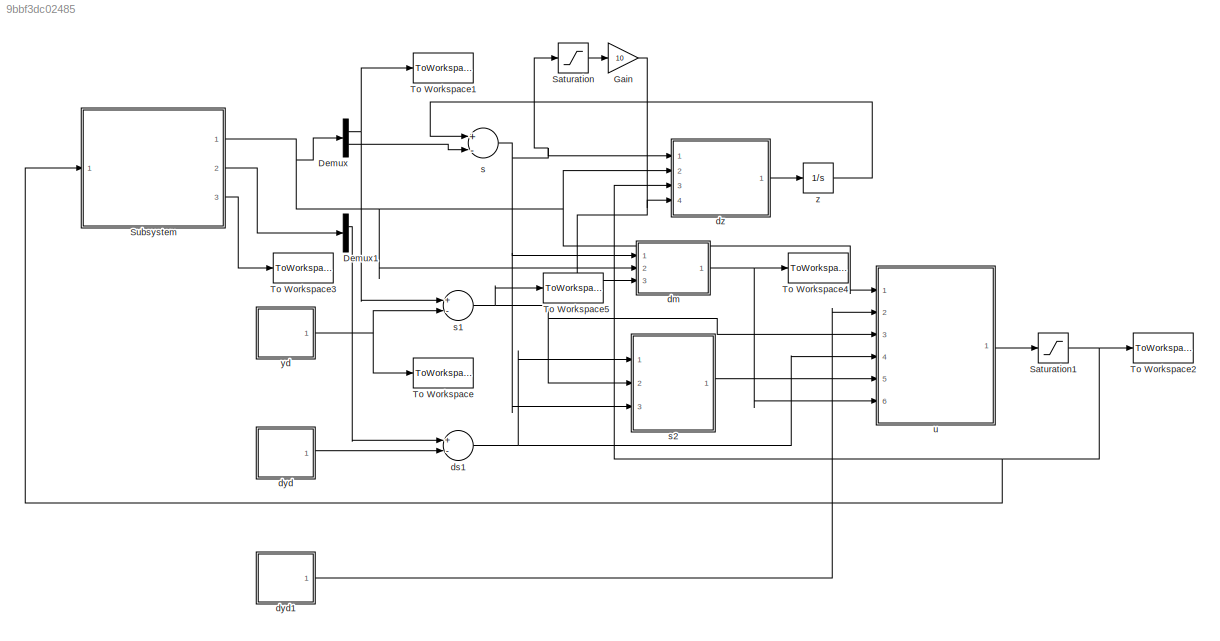
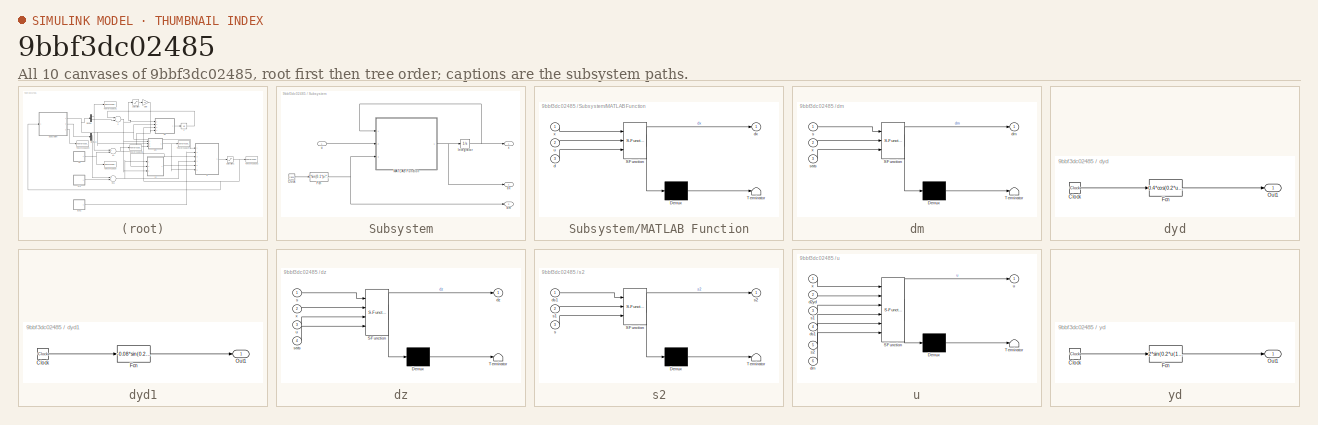
[diagram: thumbnail index - all 10 canvases of the model, root first then tree order]
MODEL slx_9bbf3dc02485
KIND model
CONFIG AbsTol = auto
CONFIG EnableMultiTasking = off
CONFIG FixedStep = 0.005
CONFIG MaxStep = auto
CONFIG MinStep = auto
CONFIG RelTol = 1e-3
CONFIG SampleTimeConstraint = Unconstrained
CONFIG Solver = FixedStepAuto
CONFIG SolverName = FixedStepAuto
CONFIG StartTime = 0.0
CONFIG StopTime = 50
BLOCK [Demux] Demux
  DisplayOption = bar
  Outputs = 2
  Ports = [1, 2]
BLOCK [Demux] Demux1
  DisplayOption = bar
  Outputs = 2
  Ports = [1, 2]
BLOCK [Gain] Gain
  Gain = 10
  OutDataTypeStr = Inherit: Inherit via internal rule
  ParamDataTypeStr = Inherit: Inherit via internal rule
  SaturateOnIntegerOverflow = off
BLOCK [Saturate] Saturation
  InputPortMap = u0
  LowerLimit = -0.1
  Ports = [1, 1]
  UpperLimit = 0.1
BLOCK [Saturate] Saturation1
  InputPortMap = u0
  LowerLimit = -8
  Ports = [1, 1]
  UpperLimit = 6
BLOCK [SubSystem] Subsystem
  Ports = [1, 3]
  RequestExecContextInheritance = off
BLOCK [Clock] Subsystem/Clock
BLOCK [Fcn] Subsystem/Fcn
  Expr = 2*sin(0.1*pi*u(1))+3*sin(0.2*sqrt(u(1)+1))
BLOCK [Integrator] Subsystem/Integrator
  InitialCondition = [0.1;0.2]
  Ports = [1, 1]
BLOCK [SubSystem] Subsystem/MATLAB Function
  ErrorFcn = Stateflow.Translate.translate
  PermitHierarchicalResolution = ExplicitOnly
  Ports = [3, 1]
  RequestExecContextInheritance = off
  SFBlockType = MATLAB Function
  TreatAsAtomicUnit = on
BLOCK [Demux] Subsystem/MATLAB Function/ Demux 
  Outputs = 1
  Ports = [1, 1]
BLOCK [S-Function] Subsystem/MATLAB Function/ SFunction 
  EnableBusSupport = on
  FunctionName = sf_sfun
  PortCounts = [3 2]
  Ports = [3, 2]
  SFcnIsStateOwnerBlock = off
  SFunctionDeploymentMode = off
  Tag = Stateflow S-Function bao2 2
BLOCK [Terminator] Subsystem/MATLAB Function/ Terminator 
BLOCK [Inport] Subsystem/MATLAB Function/d
  IconDisplay = Port number
  Port = 3
BLOCK [Outport] Subsystem/MATLAB Function/dx
  IconDisplay = Port number
BLOCK [Inport] Subsystem/MATLAB Function/u
  IconDisplay = Port number
  Port = 2
BLOCK [Inport] Subsystem/MATLAB Function/x
  IconDisplay = Port number
BLOCK [Outport] Subsystem/dm
  IconDisplay = Port number
  Port = 3
BLOCK [Outport] Subsystem/dx
  IconDisplay = Port number
  Port = 2
BLOCK [Inport] Subsystem/u
  IconDisplay = Port number
BLOCK [Outport] Subsystem/x
  IconDisplay = Port number
BLOCK [ToWorkspace] To Workspace
  FixptAsFi = on
  MaxDataPoints = inf
  Ports = [1]
  SampleTime = -1
  Save2DSignal = 3-D array (concatenate along third dimension)
  VariableName = yd
BLOCK [ToWorkspace] To Workspace1
  FixptAsFi = on
  MaxDataPoints = inf
  Ports = [1]
  SampleTime = -1
  Save2DSignal = 3-D array (concatenate along third dimension)
  VariableName = y
BLOCK [ToWorkspace] To Workspace2
  FixptAsFi = on
  MaxDataPoints = inf
  Ports = [1]
  SampleTime = -1
  Save2DSignal = 3-D array (concatenate along third dimension)
  VariableName = u
BLOCK [ToWorkspace] To Workspace3
  FixptAsFi = on
  MaxDataPoints = inf
  Ports = [1]
  SampleTime = -1
  Save2DSignal = 3-D array (concatenate along third dimension)
  VariableName = d
BLOCK [ToWorkspace] To Workspace4
  FixptAsFi = on
  MaxDataPoints = inf
  Ports = [1]
  SampleTime = -1
  Save2DSignal = 3-D array (concatenate along third dimension)
  VariableName = dm
BLOCK [ToWorkspace] To Workspace5
  FixptAsFi = on
  MaxDataPoints = inf
  Ports = [1]
  SampleTime = -1
  Save2DSignal = 3-D array (concatenate along third dimension)
  VariableName = s1
BLOCK [SubSystem] dm
  ErrorFcn = Stateflow.Translate.translate
  PermitHierarchicalResolution = ExplicitOnly
  Ports = [3, 1]
  RequestExecContextInheritance = off
  SFBlockType = MATLAB Function
  TreatAsAtomicUnit = on
BLOCK [Demux] dm/ Demux 
  Outputs = 1
  Ports = [1, 1]
BLOCK [S-Function] dm/ SFunction 
  EnableBusSupport = on
  FunctionName = sf_sfun
  PortCounts = [3 2]
  Ports = [3, 2]
  SFcnIsStateOwnerBlock = off
  SFunctionDeploymentMode = off
  Tag = Stateflow S-Function bao2 4
BLOCK [Terminator] dm/ Terminator 
BLOCK [Outport] dm/dm
  IconDisplay = Port number
BLOCK [Inport] dm/s
  IconDisplay = Port number
BLOCK [Inport] dm/sats
  IconDisplay = Port number
  Port = 3
BLOCK [Inport] dm/x
  IconDisplay = Port number
  Port = 2
BLOCK [Sum] ds1
  InputSameDT = off
  Inputs = +-
  OutDataTypeStr = Inherit: Inherit via internal rule
  Ports = [2, 1]
  SaturateOnIntegerOverflow = off
BLOCK [SubSystem] dyd
  Ports = [0, 1]
  RequestExecContextInheritance = off
BLOCK [Clock] dyd/Clock
BLOCK [Fcn] dyd/Fcn
  Expr = 0.4*cos(0.2*u(1))
BLOCK [Outport] dyd/Out1
  IconDisplay = Port number
BLOCK [SubSystem] dyd1
  Ports = [0, 1]
  RequestExecContextInheritance = off
BLOCK [Clock] dyd1/Clock
BLOCK [Fcn] dyd1/Fcn
  Expr = -0.08*sin(0.2*u(1))
BLOCK [Outport] dyd1/Out1
  IconDisplay = Port number
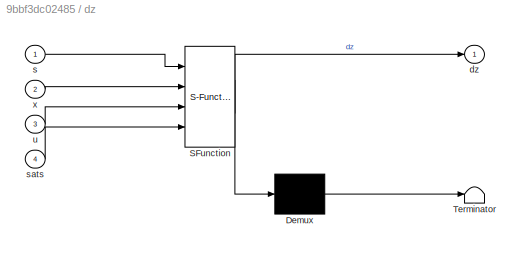
BLOCK [SubSystem] dz
  ErrorFcn = Stateflow.Translate.translate
  PermitHierarchicalResolution = ExplicitOnly
  Ports = [4, 1]
  RequestExecContextInheritance = off
  SFBlockType = MATLAB Function
  TreatAsAtomicUnit = on
BLOCK [Demux] dz/ Demux 
  Outputs = 1
  Ports = [1, 1]
BLOCK [S-Function] dz/ SFunction 
  EnableBusSupport = on
  FunctionName = sf_sfun
  PortCounts = [4 2]
  Ports = [4, 2]
  SFcnIsStateOwnerBlock = off
  SFunctionDeploymentMode = off
  Tag = Stateflow S-Function bao2 1
BLOCK [Terminator] dz/ Terminator 
BLOCK [Outport] dz/dz
  IconDisplay = Port number
BLOCK [Inport] dz/s
  IconDisplay = Port number
BLOCK [Inport] dz/sats
  IconDisplay = Port number
  Port = 4
BLOCK [Inport] dz/u
  IconDisplay = Port number
  Port = 3
BLOCK [Inport] dz/x
  IconDisplay = Port number
  Port = 2
BLOCK [Sum] s
  InputSameDT = off
  Inputs = +-
  OutDataTypeStr = Inherit: Inherit via internal rule
  Ports = [2, 1]
  SaturateOnIntegerOverflow = off
BLOCK [Sum] s1
  InputSameDT = off
  Inputs = +-
  OutDataTypeStr = Inherit: Inherit via internal rule
  Ports = [2, 1]
  SaturateOnIntegerOverflow = off
BLOCK [SubSystem] s2
  ErrorFcn = Stateflow.Translate.translate
  PermitHierarchicalResolution = ExplicitOnly
  Ports = [3, 1]
  RequestExecContextInheritance = off
  SFBlockType = MATLAB Function
  TreatAsAtomicUnit = on
BLOCK [Demux] s2/ Demux 
  Outputs = 1
  Ports = [1, 1]
BLOCK [S-Function] s2/ SFunction 
  EnableBusSupport = on
  FunctionName = sf_sfun
  PortCounts = [3 2]
  Ports = [3, 2]
  SFcnIsStateOwnerBlock = off
  SFunctionDeploymentMode = off
  Tag = Stateflow S-Function bao2 3
BLOCK [Terminator] s2/ Terminator 
BLOCK [Inport] s2/ds1
  IconDisplay = Port number
BLOCK [Inport] s2/s
  IconDisplay = Port number
  Port = 3
BLOCK [Inport] s2/s1
  IconDisplay = Port number
  Port = 2
BLOCK [Outport] s2/s2
  IconDisplay = Port number
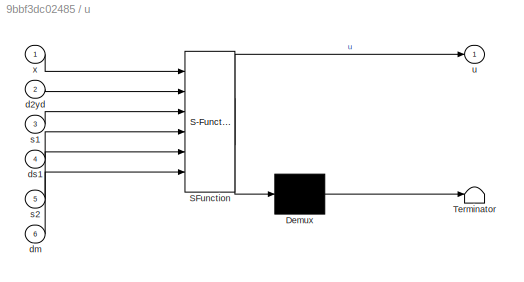
BLOCK [SubSystem] u
  ErrorFcn = Stateflow.Translate.translate
  PermitHierarchicalResolution = ExplicitOnly
  Ports = [6, 1]
  RequestExecContextInheritance = off
  SFBlockType = MATLAB Function
  TreatAsAtomicUnit = on
BLOCK [Demux] u/ Demux 
  Outputs = 1
  Ports = [1, 1]
BLOCK [S-Function] u/ SFunction 
  EnableBusSupport = on
  FunctionName = sf_sfun
  PortCounts = [6 2]
  Ports = [6, 2]
  SFcnIsStateOwnerBlock = off
  SFunctionDeploymentMode = off
  Tag = Stateflow S-Function bao2 5
BLOCK [Terminator] u/ Terminator 
BLOCK [Inport] u/d2yd
  IconDisplay = Port number
  Port = 2
BLOCK [Inport] u/dm
  IconDisplay = Port number
  Port = 6
BLOCK [Inport] u/ds1
  IconDisplay = Port number
  Port = 4
BLOCK [Inport] u/s1
  IconDisplay = Port number
  Port = 3
BLOCK [Inport] u/s2
  IconDisplay = Port number
  Port = 5
BLOCK [Outport] u/u
  IconDisplay = Port number
BLOCK [Inport] u/x
  IconDisplay = Port number
BLOCK [SubSystem] yd
  Ports = [0, 1]
  RequestExecContextInheritance = off
BLOCK [Clock] yd/Clock
BLOCK [Fcn] yd/Fcn
  Expr = 2*sin(0.2*u(1))
BLOCK [Outport] yd/Out1
  IconDisplay = Port number
BLOCK [Integrator] z
  InitialCondition = 0.2
  Ports = [1, 1]
LINE Demux1:1 -> ds1:1
NET Demux:1 -> To Workspace1:1, s1:1
LINE Demux:2 -> s:2
NET Gain:1 -> dm:3, dz:4
NET Saturation1:1 -> Subsystem:1, To Workspace2:1, dz:3
LINE Saturation:1 -> Gain:1
LINE Subsystem/Clock:1 -> Subsystem/Fcn:1
NET Subsystem/Fcn:1 -> Subsystem/MATLAB Function:3, Subsystem/dm:1
NET Subsystem/Integrator:1 -> Subsystem/MATLAB Function:1, Subsystem/x:1
NET Subsystem/MATLAB Function:1 -> Subsystem/Integrator:1, Subsystem/dx:1
LINE Subsystem/u:1 -> Subsystem/MATLAB Function:2
NET Subsystem:1 -> Demux:1, dm:2, dz:2, u:1
LINE Subsystem:2 -> Demux1:1
LINE Subsystem:3 -> To Workspace3:1
NET dm:1 -> To Workspace4:1, u:6
NET ds1:1 -> s2:1, u:4
LINE dyd/Clock:1 -> dyd/Fcn:1
LINE dyd/Fcn:1 -> dyd/Out1:1
LINE dyd1/Clock:1 -> dyd1/Fcn:1
LINE dyd1/Fcn:1 -> dyd1/Out1:1
LINE dyd1:1 -> u:2
LINE dyd:1 -> ds1:2
LINE dz:1 -> z:1
NET s1:1 -> To Workspace5:1, s2:2, u:3
LINE s2:1 -> u:5
NET s:1 -> Saturation:1, dm:1, dz:1, s2:3
LINE u:1 -> Saturation1:1
LINE yd/Clock:1 -> yd/Fcn:1
LINE yd/Fcn:1 -> yd/Out1:1
NET yd:1 -> To Workspace:1, s1:2
LINE z:1 -> s:1
note: NET lines group one-source signal fan-out (src -> all destinations, sorted); 1:1 wires keep LINE
CHART dz states=1 transitions=1
  STATE_LABEL 'eML_blk_kernel()'
  STATE_LABEL 'SCRIPT:\nfunction dz = fcn(s,x,u,sats)\nk=25;\nbeta=5;\neps=0.5;\np0=5;\nq0=9;\ndz=-k*s-beta*sats-eps*nthroot(s^p0,q0)-abs(-2*x(1)+3*(1-x(1)^2)*x(2))*sats+u;\nend'
CHART Subsystem/MATLAB Function states=1 transitions=1
  STATE_LABEL 'eML_blk_kernel()'
  STATE_LABEL 'SCRIPT:\nfunction dx = fcn(x,u,d)\ndx=[x(2);\n    -2*x(1)+3*(1-x(1)^2)*x(2)+u+d];\nend'
CHART s2 states=1 transitions=1
  STATE_LABEL 'eML_blk_kernel()'
  STATE_LABEL 'SCRIPT:\nfunction s2 = fcn(ds1,s1,s)\nalp1=50;\nbet1=0.5;\np1=5;\nq1=7;\ns2=ds1+alp1*s1+bet1*abs(s1)^(p1/q1)*sign(s1)+s;\nend'
CHART dm states=1 transitions=1
  STATE_LABEL 'eML_blk_kernel()'
  STATE_LABEL 'SCRIPT:\nfunction dm = fcn(s,x,sats)\nk=25;\nbeta=5;\neps=0.5;\np0=5;\nq0=9;\ndm=-k*s-beta*sats-eps*abs(s)^(p0/q0)*sign(s)-abs(-2*x(1)+3*(1-x(1)^2)*x(2))*sats+2*x(1)-3*(1-x(1)^2)*x(2);\nend'
CHART u states=1 transitions=1
  STATE_LABEL 'eML_blk_kernel()'
  STATE_LABEL 'SCRIPT:\nfunction u = fcn(x,d2yd,s1,ds1,s2,dm)                           \nalp1=50;\nbet1=0.5;\np1=5;\nq1=7;\np2=5;\nq2=7;\ndel=60;\nmuy=0.8;\nu=2*x(1)-3*(1-x(1)^2)*x(2)+d2yd-alp1*ds1-bet1*p1/q1*abs(s1)^(p1/q1-1)*ds1-dm-del*s2-muy*abs(s2)^(p2/q2)*sign(s2);\nend'
